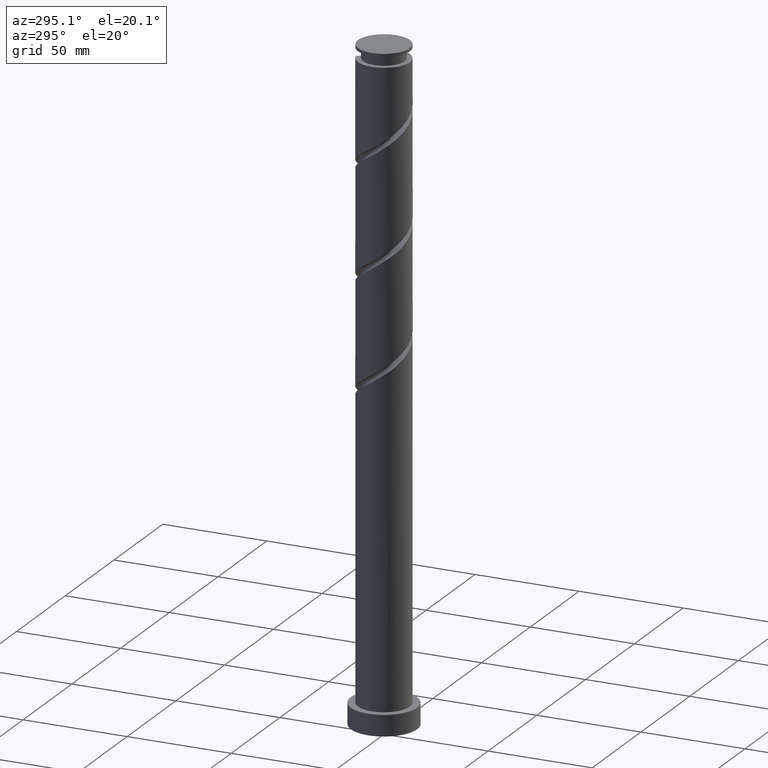
[diagram: clean part render]
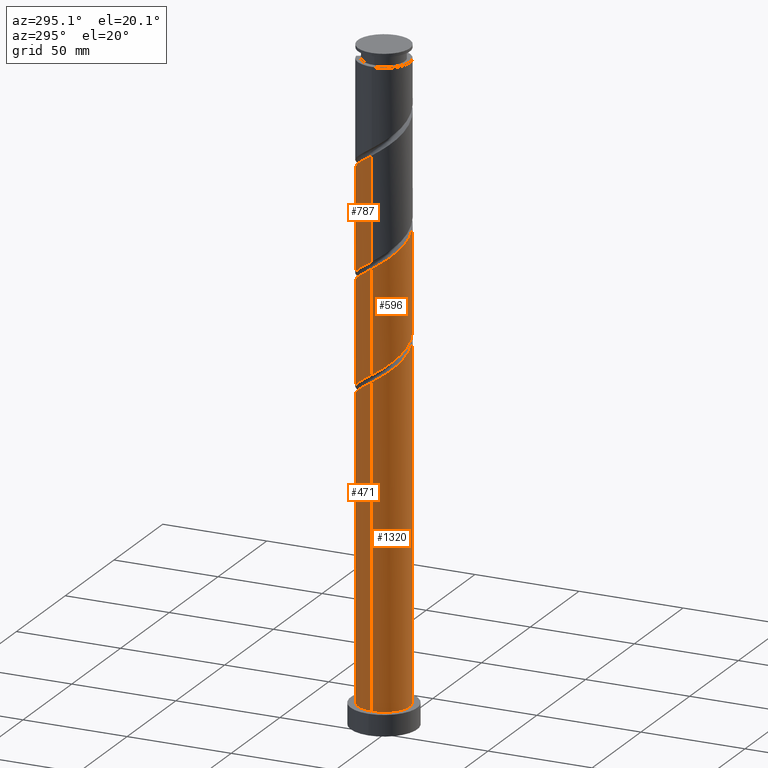
[diagram: same view with one multi-face feature highlighted, each face labeled with its STEP entity id]
A machine part, auxiliary view. The highlighted faces form ONE feature: a constant-radius fillet chain: 4 tangent blend faces with common blend radius 12.5 mm. The faces share edges in the B-rep.
Their STEP definitions:
[1] entity #471 (Cylinder):
#3 = AXIS2_PLACEMENT_3D ( 'NONE', #437, #1153, #4 ) ;
#4 = DIRECTION ( 'NONE',  ( -1.000000000000000000, 0.000000000000000000, 0.000000000000000000 ) ) ;
#12 = CARTESIAN_POINT ( 'NONE',  ( -6.434255898914307714, 10.80897657881207152, 153.8468294155478588 ) ) ;
#29 = CARTESIAN_POINT ( 'NONE',  ( -12.50000000000001776, -5.074762997318953565E-16, 162.4848123376418130 ) ) ;
#106 = DIRECTION ( 'NONE',  ( -0.000000000000000000, -0.000000000000000000, -1.000000000000000000 ) ) ;
#115 = CARTESIAN_POINT ( 'NONE',  ( 10.80897657881207152, 6.434255898914305938, 193.2218294155478304 ) ) ;
#123 = CARTESIAN_POINT ( 'NONE',  ( -3.867712106542918526, 11.96972960074382009, 204.4718294155478304 ) ) ;
#124 = AXIS2_PLACEMENT_3D ( 'NONE', #1365, #1650, #347 ) ;
#135 = FACE_OUTER_BOUND ( 'NONE', #1719, .T. ) ;
#162 = CARTESIAN_POINT ( 'NONE',  ( 12.50000000000000000, 1.530808498934191521E-15, 315.0000000000000000 ) ) ;
#172 = CARTESIAN_POINT ( 'NONE',  ( -3.867712106542918526, 11.96972960074382009, 151.9718294155477736 ) ) ;
#179 = CARTESIAN_POINT ( 'NONE',  ( -5.692968815294146445, 11.12834696026720849, 156.6593294155478304 ) ) ;
#190 = CARTESIAN_POINT ( 'NONE',  ( -9.582531330244838941, 8.026524360199537966, 156.6593294155478020 ) ) ;
#211 = CARTESIAN_POINT ( 'NONE',  ( 0.000000000000000000, 0.000000000000000000, 10.00000000000000000 ) ) ;
#213 = VERTEX_POINT ( 'NONE', #1684 ) ;
#243 = CARTESIAN_POINT ( 'NONE',  ( 12.50000000000001776, -1.149284561157527928E-15, 188.7348123376417846 ) ) ;
#254 = LINE ( 'NONE', #1004, #880 ) ;
#281 = CARTESIAN_POINT ( 'NONE',  ( -9.582531330244838941, 8.026524360199537966, 209.1593294155478873 ) ) ;
#297 = CARTESIAN_POINT ( 'NONE',  ( -10.48690342708837697, 6.946832383535930688, 210.0968294155477736 ) ) ;
#299 = CARTESIAN_POINT ( 'NONE',  ( -11.96972960074379877, 3.867712106542914530, 163.2218294155478020 ) ) ;
#309 = CARTESIAN_POINT ( 'NONE',  ( -8.678159233401299133, 9.106216336863141692, 155.7218294155478020 ) ) ;
#347 = DIRECTION ( 'NONE',  ( -1.000000000000000000, 0.000000000000000000, 0.000000000000000000 ) ) ;
#348 = CARTESIAN_POINT ( 'NONE',  ( -12.50000000000002132, 0.1504112145798772171, 162.3844496494166947 ) ) ;
#357 = CARTESIAN_POINT ( 'NONE',  ( -12.50000000000001776, -5.074762997318953565E-16, 214.9848123376417846 ) ) ;
#398 = CIRCLE ( 'NONE', #965, 12.50000000000000000 ) ;
#404 = CARTESIAN_POINT ( 'NONE',  ( -11.12834696026722803, 5.692968815294158880, 211.0343294155478588 ) ) ;
#423 = CARTESIAN_POINT ( 'NONE',  ( 12.25000000000001954, 2.487468592766555187, 190.4093294155478873 ) ) ;
#434 = CARTESIAN_POINT ( 'NONE',  ( -8.678159233401299133, 9.106216336863141692, 208.2218294155478020 ) ) ;
#437 = CARTESIAN_POINT ( 'NONE',  ( 0.000000000000000000, 0.000000000000000000, 315.0000000000000000 ) ) ;
#444 = CARTESIAN_POINT ( 'NONE',  ( 9.957596457837611936, 7.556207566157802979, 194.1593294155478588 ) ) ;
#471 = ADVANCED_FACE ( 'NONE', ( #135 ), #1022, .T. ) ;
#479 = ORIENTED_EDGE ( 'NONE', *, *, #1712, .F. ) ;
#495 = CARTESIAN_POINT ( 'NONE',  ( -6.946832383535917366, 10.48690342708835921, 157.5968294155478304 ) ) ;
#523 = DIRECTION ( 'NONE',  ( 0.000000000000000000, 0.000000000000000000, 1.000000000000000000 ) ) ;
#559 = CARTESIAN_POINT ( 'NONE',  ( 6.946832383535931577, 10.48690342708837697, 196.9718294155478304 ) ) ;
#568 = CARTESIAN_POINT ( 'NONE',  ( 1.708782837392392784, 12.46249111809732035, 200.7218294155477736 ) ) ;
#570 = EDGE_CURVE ( 'NONE', #213, #1221, #1654, .T. ) ;
#589 = CARTESIAN_POINT ( 'NONE',  ( -12.49999999999999822, 3.761294927424663318E-15, 165.8338464934538479 ) ) ;
#598 = CARTESIAN_POINT ( 'NONE',  ( 11.96972960074382009, 3.867712106542916306, 191.3468294155478588 ) ) ;
#635 = CARTESIAN_POINT ( 'NONE',  ( -2.487468592766553410, 12.25000000000001776, 151.0343294155478020 ) ) ;
#645 = CARTESIAN_POINT ( 'NONE',  ( -4.439105247052374636, 11.76979049344605066, 155.7218294155478020 ) ) ;
#713 = CARTESIAN_POINT ( 'NONE',  ( -12.50000000000000000, 0.000000000000000000, 315.0000000000000000 ) ) ;
#716 = VECTOR ( 'NONE', #1357, 1000.000000000000000 ) ;
#733 = CARTESIAN_POINT ( 'NONE',  ( -12.11614080577169617, 3.073944042222387374, 212.9093294155478873 ) ) ;
#755 = CARTESIAN_POINT ( 'NONE',  ( 8.026524360199539743, 9.582531330244838941, 196.0343294155478588 ) ) ;
#762 = VERTEX_POINT ( 'NONE', #1641 ) ;
#775 = CARTESIAN_POINT ( 'NONE',  ( -3.073944042222380268, 12.11614080577167663, 154.7843294155478304 ) ) ;
#777 = EDGE_CURVE ( 'NONE', #968, #1359, #1854, .T. ) ;
#795 = CARTESIAN_POINT ( 'NONE',  ( -12.46249111809732035, 1.708782837392390563, 161.3468294155478020 ) ) ;
#813 = CARTESIAN_POINT ( 'NONE',  ( -2.487468592766553410, 12.25000000000001776, 151.0343294155478020 ) ) ;
#825 = EDGE_CURVE ( 'NONE', #1489, #762, #912, .T. ) ;
#829 = ORIENTED_EDGE ( 'NONE', *, *, #1892, .T. ) ;
#846 = ORIENTED_EDGE ( 'NONE', *, *, #570, .F. ) ;
#863 = CARTESIAN_POINT ( 'NONE',  ( -7.556207566157804756, 9.957596457837610160, 207.2843294155478873 ) ) ;
#864 = CARTESIAN_POINT ( 'NONE',  ( -10.80897657881205198, 6.434255898914301497, 161.3468294155478020 ) ) ;
#874 = CARTESIAN_POINT ( 'NONE',  ( -9.106216336863127481, 8.678159233401288475, 159.4718294155478304 ) ) ;
#880 = VECTOR ( 'NONE', #106, 1000.000000000000000 ) ;
#887 = EDGE_CURVE ( 'NONE', #762, #990, #398, .T. ) ;
#903 = CARTESIAN_POINT ( 'NONE',  ( -11.38935308977792360, 5.150984002728607791, 162.2843294155478873 ) ) ;
#912 = LINE ( 'NONE', #162, #716 ) ;
#914 = ORIENTED_EDGE ( 'NONE', *, *, #1685, .F. ) ;
#922 = VERTEX_POINT ( 'NONE', #357 ) ;
#929 = CARTESIAN_POINT ( 'NONE',  ( -1.708782837392384790, 12.46249111809730081, 153.8468294155478304 ) ) ;
#937 = CARTESIAN_POINT ( 'NONE',  ( -8.026524360199523755, 9.582531330244824730, 158.5343294155478304 ) ) ;
#948 = CARTESIAN_POINT ( 'NONE',  ( -12.50000000000001776, -5.074762997318952579E-16, 162.4848123376418130 ) ) ;
#965 = AXIS2_PLACEMENT_3D ( 'NONE', #211, #523, #1575 ) ;
#968 = VERTEX_POINT ( 'NONE', #813 ) ;
#969 = CIRCLE ( 'NONE', #124, 12.50000000000000000 ) ;
#990 = VERTEX_POINT ( 'NONE', #1131 ) ;
#1004 = CARTESIAN_POINT ( 'NONE',  ( -12.50000000000000000, 0.000000000000000000, 315.0000000000000000 ) ) ;
#1005 = CARTESIAN_POINT ( 'NONE',  ( -12.49638075867677145, 0.3007788792010986367, 214.7843294155478304 ) ) ;
#1012 = CARTESIAN_POINT ( 'NONE',  ( 12.50000000000001776, -1.149284561157527928E-15, 188.7348123376418130 ) ) ;
#1021 = CARTESIAN_POINT ( 'NONE',  ( 9.106216336863141692, 8.678159233401297357, 195.0968294155478304 ) ) ;
#1022 = CYLINDRICAL_SURFACE ( 'NONE', #3, 12.50000000000000000 ) ;
#1026 = ORIENTED_EDGE ( 'NONE', *, *, #825, .T. ) ;
#1033 = CARTESIAN_POINT ( 'NONE',  ( -12.46249111809732035, 1.708782837392390563, 213.8468294155478020 ) ) ;
#1040 = CARTESIAN_POINT ( 'NONE',  ( 3.073944042222391371, 12.11614080577169617, 199.7843294155478588 ) ) ;
#1131 = CARTESIAN_POINT ( 'NONE',  ( -12.50000000000000000, 0.000000000000000000, 10.00000000000000000 ) ) ;
#1143 = EDGE_CURVE ( 'NONE', #922, #213, #254, .T. ) ;
#1147 = ORIENTED_EDGE ( 'NONE', *, *, #1143, .F. ) ;
#1152 = CARTESIAN_POINT ( 'NONE',  ( -2.487468592766554298, 12.25000000000001954, 203.5343294155478020 ) ) ;
#1153 = DIRECTION ( 'NONE',  ( -0.000000000000000000, -0.000000000000000000, -1.000000000000000000 ) ) ;
#1161 = CARTESIAN_POINT ( 'NONE',  ( -12.50000000000001599, 0.1504112145798805200, 214.8844496494166094 ) ) ;
#1190 = CARTESIAN_POINT ( 'NONE',  ( 4.439105247052387071, 11.76979049344606665, 198.8468294155478588 ) ) ;
#1216 = CARTESIAN_POINT ( 'NONE',  ( -0.3007788792010951950, 12.49638075867675369, 152.9093294155478588 ) ) ;
#1221 = VERTEX_POINT ( 'NONE', #1445 ) ;
#1227 = CARTESIAN_POINT ( 'NONE',  ( -5.150984002728612232, 11.38935308977794492, 152.9093294155478588 ) ) ;
#1236 = CARTESIAN_POINT ( 'NONE',  ( -11.76979049344606665, 4.439105247052384406, 159.4718294155478588 ) ) ;
#1307 = DIRECTION ( 'NONE',  ( -0.000000000000000000, -0.000000000000000000, -1.000000000000000000 ) ) ;
#1327 = CARTESIAN_POINT ( 'NONE',  ( -6.434255898914307714, 10.80897657881207152, 206.3468294155478304 ) ) ;
#1338 = LINE ( 'NONE', #713, #1743 ) ;
#1349 = CARTESIAN_POINT ( 'NONE',  ( 5.692968815294160656, 11.12834696026722625, 197.9093294155478020 ) ) ;
#1357 = DIRECTION ( 'NONE',  ( -0.000000000000000000, -0.000000000000000000, -1.000000000000000000 ) ) ;
#1359 = VERTEX_POINT ( 'NONE', #29 ) ;
#1365 = CARTESIAN_POINT ( 'NONE',  ( 0.000000000000000000, 0.000000000000000000, 151.0343294155478304 ) ) ;
#1366 = CARTESIAN_POINT ( 'NONE',  ( -12.11614080577169617, 3.073944042222387374, 160.4093294155478304 ) ) ;
#1384 = CARTESIAN_POINT ( 'NONE',  ( -12.49638075867677145, 0.3007788792010986367, 162.2843294155478588 ) ) ;
#1445 = CARTESIAN_POINT ( 'NONE',  ( 2.487468592766557851, 12.25000000000000000, 151.0343294155478020 ) ) ;
#1463 = CARTESIAN_POINT ( 'NONE',  ( -11.76979049344606665, 4.439105247052384406, 211.9718294155478020 ) ) ;
#1489 = VERTEX_POINT ( 'NONE', #243 ) ;
#1510 = CARTESIAN_POINT ( 'NONE',  ( -7.556207566157804756, 9.957596457837610160, 154.7843294155478304 ) ) ;
#1575 = DIRECTION ( 'NONE',  ( 1.000000000000000000, 0.000000000000000000, 0.000000000000000000 ) ) ;
#1594 = CARTESIAN_POINT ( 'NONE',  ( -12.50000000000001776, -5.074762997318953565E-16, 214.9848123376417846 ) ) ;
#1612 = CARTESIAN_POINT ( 'NONE',  ( -1.107225078990190958, 12.53027039925621544, 202.5968294155478588 ) ) ;
#1632 = CARTESIAN_POINT ( 'NONE',  ( 0.3007788792011008017, 12.49638075867676967, 201.6593294155478588 ) ) ;
#1633 = ORIENTED_EDGE ( 'NONE', *, *, #777, .F. ) ;
#1634 = CARTESIAN_POINT ( 'NONE',  ( -12.25000000000000000, 2.487468592766555631, 164.1593294155478304 ) ) ;
#1641 = CARTESIAN_POINT ( 'NONE',  ( 12.50000000000000000, 1.530808498934191521E-15, 10.00000000000000000 ) ) ;
#1650 = DIRECTION ( 'NONE',  ( 0.000000000000000000, -0.000000000000000000, -1.000000000000000000 ) ) ;
#1654 =( BOUNDED_CURVE ( )  B_SPLINE_CURVE ( 2, ( #589, #1781, #1634, #299, #903, #864, #1904, #874, #937, #495, #179, #645, #775, #929, #1216, #1829, #1809 ),
 .UNSPECIFIED., .F., .T. ) 
 B_SPLINE_CURVE_WITH_KNOTS ( ( 3, 2, 2, 2, 2, 2, 2, 2, 3 ),
 ( 0.9295303401299220836, 0.9375000000000000000, 0.9464285714285713969, 0.9553571428571429047, 0.9642857142857143016, 0.9732142857142856984, 0.9821428571428570953, 0.9910714285714286031, 1.000000000000000000 ),
 .UNSPECIFIED. ) 
 CURVE ( )  GEOMETRIC_REPRESENTATION_ITEM ( )  RATIONAL_B_SPLINE_CURVE ( ( 0.9079949616361863152, 0.9039886423360496970, 0.9090909090909161661, 0.9033747362665913716, 0.9090909090909161661, 0.9033747362665913716, 0.9090909090909161661, 0.9033747362665913716, 0.9090909090909161661, 0.9033747362665913716, 0.9090909090909161661, 0.9033747362665913716, 0.9090909090909161661, 0.9033747362665913716, 0.9090909090909161661, 0.9033747362665913716, 0.9090909090909161661 ) ) 
 REPRESENTATION_ITEM ( '' )  );
#1682 = CARTESIAN_POINT ( 'NONE',  ( -10.48690342708837697, 6.946832383535930688, 157.5968294155477736 ) ) ;
#1684 = CARTESIAN_POINT ( 'NONE',  ( -12.49999999999999822, 3.761294927424663318E-15, 165.8338464934538763 ) ) ;
#1685 = EDGE_CURVE ( 'NONE', #1359, #990, #1338, .T. ) ;
#1712 = EDGE_CURVE ( 'NONE', #1489, #922, #1800, .T. ) ;
#1719 = EDGE_LOOP ( 'NONE', ( #479, #1026, #1774, #914, #1633, #829, #846, #1147 ) ) ;
#1742 = CARTESIAN_POINT ( 'NONE',  ( -5.150984002728612232, 11.38935308977794492, 205.4093294155478873 ) ) ;
#1743 = VECTOR ( 'NONE', #1307, 1000.000000000000000 ) ;
#1771 = CARTESIAN_POINT ( 'NONE',  ( 12.50000000000001421, 1.256297269074021283, 189.5730834166053285 ) ) ;
#1774 = ORIENTED_EDGE ( 'NONE', *, *, #887, .T. ) ;
#1781 = CARTESIAN_POINT ( 'NONE',  ( -12.49999999999999467, 1.256297269074019729, 164.9955754144902471 ) ) ;
#1800 =( BOUNDED_CURVE ( )  B_SPLINE_CURVE ( 2, ( #1012, #1771, #423, #598, #1902, #115, #444, #1021, #755, #559, #1349, #1190, #1040, #568, #1632, #1612, #1152, #123, #1742, #1327, #863, #434, #281, #297, #404, #1463, #733, #1033, #1005, #1161, #1594 ),
 .UNSPECIFIED., .F., .T. ) 
 B_SPLINE_CURVE_WITH_KNOTS ( ( 3, 2, 2, 2, 2, 2, 2, 2, 2, 2, 2, 2, 2, 2, 2, 3 ),
 ( 0.1795303401299221113, 0.1875000000000000000, 0.1964285714285713969, 0.2053571428571429047, 0.2142857142857143016, 0.2232142857142856984, 0.2321428571428570953, 0.2410714285714286031, 0.2500000000000000000, 0.2589285714285713969, 0.2678571428571429047, 0.2767857142857143016, 0.2857142857142856984, 0.2946428571428570953, 0.3035714285714286031, 0.3045303401299220836 ),
 .UNSPECIFIED. ) 
 CURVE ( )  GEOMETRIC_REPRESENTATION_ITEM ( )  RATIONAL_B_SPLINE_CURVE ( ( 0.9079949616361926434, 0.9039886423360559142, 0.9090909090909224943, 0.9033747362665975889, 0.9090909090909224943, 0.9033747362665975889, 0.9090909090909224943, 0.9033747362665975889, 0.9090909090909224943, 0.9033747362665975889, 0.9090909090909224943, 0.9033747362665975889, 0.9090909090909224943, 0.9033747362665975889, 0.9090909090909224943, 0.9033747362665975889, 0.9090909090909224943, 0.9033747362665975889, 0.9090909090909224943, 0.9033747362665975889, 0.9090909090909224943, 0.9033747362665975889, 0.9090909090909224943, 0.9033747362665975889, 0.9090909090909224943, 0.9033747362665975889, 0.9090909090909224943, 0.9033747362665975889, 0.9090909090909224943, 0.9084770030214643910, 0.9079949616361926434 ) ) 
 REPRESENTATION_ITEM ( '' )  );
#1809 = CARTESIAN_POINT ( 'NONE',  ( 2.487468592766557851, 12.25000000000000000, 151.0343294155478020 ) ) ;
#1819 = CARTESIAN_POINT ( 'NONE',  ( -11.12834696026722803, 5.692968815294158880, 158.5343294155479157 ) ) ;
#1829 = CARTESIAN_POINT ( 'NONE',  ( 1.107225078990194511, 12.53027039925619590, 151.9718294155477736 ) ) ;
#1854 =( BOUNDED_CURVE ( )  B_SPLINE_CURVE ( 2, ( #635, #172, #1227, #12, #1510, #309, #190, #1682, #1819, #1236, #1366, #795, #1384, #348, #948 ),
 .UNSPECIFIED., .F., .T. ) 
 B_SPLINE_CURVE_WITH_KNOTS ( ( 3, 2, 2, 2, 2, 2, 2, 3 ),
 ( 0.000000000000000000, 0.008928571428571396851, 0.01785714285714290472, 0.02678571428571430157, 0.03571428571428569843, 0.04464285714285709528, 0.05357142857142860315, 0.05453034012992210439 ),
 .UNSPECIFIED. ) 
 CURVE ( )  GEOMETRIC_REPRESENTATION_ITEM ( )  RATIONAL_B_SPLINE_CURVE ( ( 0.9090909090909224943, 0.9033747362665975889, 0.9090909090909224943, 0.9033747362665975889, 0.9090909090909224943, 0.9033747362665975889, 0.9090909090909224943, 0.9033747362665975889, 0.9090909090909224943, 0.9033747362665975889, 0.9090909090909224943, 0.9033747362665975889, 0.9090909090909224943, 0.9084770030214641690, 0.9079949616361924214 ) ) 
 REPRESENTATION_ITEM ( '' )  );
#1892 = EDGE_CURVE ( 'NONE', #968, #1221, #969, .T. ) ;
#1902 = CARTESIAN_POINT ( 'NONE',  ( 11.38935308977794492, 5.150984002728610456, 192.2843294155478873 ) ) ;
#1904 = CARTESIAN_POINT ( 'NONE',  ( -9.957596457837594173, 7.556207566157791433, 160.4093294155478020 ) ) ;
[2] entity #1320 (Cylinder):
#29 = CARTESIAN_POINT ( 'NONE',  ( -12.50000000000001776, -5.074762997318953565E-16, 162.4848123376418130 ) ) ;
#34 = AXIS2_PLACEMENT_3D ( 'NONE', #782, #1214, #1788 ) ;
#71 = CARTESIAN_POINT ( 'NONE',  ( -12.50000000000001776, -5.074762997318952579E-16, 162.4848123376418130 ) ) ;
#88 = CARTESIAN_POINT ( 'NONE',  ( -9.957596457837610160, -7.556207566157804756, 167.9093294155478020 ) ) ;
#108 = CARTESIAN_POINT ( 'NONE',  ( -3.073944042222388706, -12.11614080577169439, 173.5343294155478588 ) ) ;
#162 = CARTESIAN_POINT ( 'NONE',  ( 12.50000000000000000, 1.530808498934191521E-15, 315.0000000000000000 ) ) ;
#243 = CARTESIAN_POINT ( 'NONE',  ( 12.50000000000001776, -1.149284561157527928E-15, 188.7348123376417846 ) ) ;
#298 = ORIENTED_EDGE ( 'NONE', *, *, #302, .T. ) ;
#302 = EDGE_CURVE ( 'NONE', #990, #762, #340, .T. ) ;
#340 = CIRCLE ( 'NONE', #1024, 12.50000000000000000 ) ;
#350 = DIRECTION ( 'NONE',  ( 1.000000000000000000, 0.000000000000000000, 0.000000000000000000 ) ) ;
#359 = CARTESIAN_POINT ( 'NONE',  ( 3.867712106542917194, -11.96972960074382009, 178.2218294155478020 ) ) ;
#368 = CARTESIAN_POINT ( 'NONE',  ( 8.678159233401297357, -9.106216336863141692, 181.9718294155478588 ) ) ;
#378 = CARTESIAN_POINT ( 'NONE',  ( -9.106216336863141692, -8.678159233401297357, 168.8468294155478588 ) ) ;
#387 = CARTESIAN_POINT ( 'NONE',  ( -0.3007788792010990253, -12.49638075867677145, 175.4093294155479157 ) ) ;
#390 = ORIENTED_EDGE ( 'NONE', *, *, #825, .F. ) ;
#395 = CARTESIAN_POINT ( 'NONE',  ( -11.38935308977794492, -5.150984002728612232, 166.0343294155478873 ) ) ;
#396 = EDGE_CURVE ( 'NONE', #1359, #1489, #997, .T. ) ;
#466 = DIRECTION ( 'NONE',  ( 0.000000000000000000, 0.000000000000000000, 1.000000000000000000 ) ) ;
#507 = CARTESIAN_POINT ( 'NONE',  ( 10.48690342708837697, -6.946832383535931577, 183.8468294155477736 ) ) ;
#516 = CARTESIAN_POINT ( 'NONE',  ( 12.50000000000002132, -0.1504112145798778555, 188.6344496494166663 ) ) ;
#668 = CARTESIAN_POINT ( 'NONE',  ( -5.692968815294158880, -11.12834696026722625, 171.6593294155478304 ) ) ;
#687 = CARTESIAN_POINT ( 'NONE',  ( 12.11614080577169439, -3.073944042222390038, 186.6593294155478304 ) ) ;
#706 = CARTESIAN_POINT ( 'NONE',  ( 7.556207566157803868, -9.957596457837610160, 181.0343294155478873 ) ) ;
#713 = CARTESIAN_POINT ( 'NONE',  ( -12.50000000000000000, 0.000000000000000000, 315.0000000000000000 ) ) ;
#716 = VECTOR ( 'NONE', #1357, 1000.000000000000000 ) ;
#762 = VERTEX_POINT ( 'NONE', #1641 ) ;
#782 = CARTESIAN_POINT ( 'NONE',  ( 0.000000000000000000, 0.000000000000000000, 315.0000000000000000 ) ) ;
#825 = EDGE_CURVE ( 'NONE', #1489, #762, #912, .T. ) ;
#826 = CARTESIAN_POINT ( 'NONE',  ( 5.150984002728612232, -11.38935308977794492, 179.1593294155478588 ) ) ;
#836 = CARTESIAN_POINT ( 'NONE',  ( 6.434255898914305938, -10.80897657881207152, 180.0968294155478304 ) ) ;
#912 = LINE ( 'NONE', #162, #716 ) ;
#935 = CYLINDRICAL_SURFACE ( 'NONE', #34, 12.50000000000000000 ) ;
#959 = CARTESIAN_POINT ( 'NONE',  ( 12.46249111809732035, -1.708782837392392340, 187.5968294155478588 ) ) ;
#970 = CARTESIAN_POINT ( 'NONE',  ( 11.12834696026722625, -5.692968815294160656, 184.7843294155478304 ) ) ;
#987 = CARTESIAN_POINT ( 'NONE',  ( 2.487468592766555631, -12.25000000000001954, 177.2843294155478873 ) ) ;
#990 = VERTEX_POINT ( 'NONE', #1131 ) ;
#996 = CARTESIAN_POINT ( 'NONE',  ( -8.026524360199537966, -9.582531330244838941, 169.7843294155479157 ) ) ;
#997 =( BOUNDED_CURVE ( )  B_SPLINE_CURVE ( 2, ( #71, #1292, #1447, #1725, #395, #1716, #88, #378, #996, #1569, #668, #1262, #108, #1144, #387, #1694, #987, #359, #826, #836, #706, #368, #1426, #507, #970, #1103, #687, #959, #1558, #516, #1112 ),
 .UNSPECIFIED., .F., .T. ) 
 B_SPLINE_CURVE_WITH_KNOTS ( ( 3, 2, 2, 2, 2, 2, 2, 2, 2, 2, 2, 2, 2, 2, 2, 3 ),
 ( 0.05453034012992210439, 0.06250000000000000000, 0.07142857142857139685, 0.08035714285714290472, 0.08928571428571430157, 0.09821428571428569843, 0.1071428571428570953, 0.1160714285714286031, 0.1250000000000000000, 0.1339285714285713969, 0.1428571428571429047, 0.1517857142857143016, 0.1607142857142856984, 0.1696428571428570953, 0.1785714285714286031, 0.1795303401299221113 ),
 .UNSPECIFIED. ) 
 CURVE ( )  GEOMETRIC_REPRESENTATION_ITEM ( )  RATIONAL_B_SPLINE_CURVE ( ( 0.9079949616361924214, 0.9039886423360559142, 0.9090909090909224943, 0.9033747362665975889, 0.9090909090909224943, 0.9033747362665975889, 0.9090909090909224943, 0.9033747362665975889, 0.9090909090909224943, 0.9033747362665975889, 0.9090909090909224943, 0.9033747362665975889, 0.9090909090909224943, 0.9033747362665975889, 0.9090909090909224943, 0.9033747362665975889, 0.9090909090909224943, 0.9033747362665975889, 0.9090909090909224943, 0.9033747362665975889, 0.9090909090909224943, 0.9033747362665975889, 0.9090909090909224943, 0.9033747362665975889, 0.9090909090909224943, 0.9033747362665975889, 0.9090909090909224943, 0.9033747362665975889, 0.9090909090909224943, 0.9084770030214642800, 0.9079949616361926434 ) ) 
 REPRESENTATION_ITEM ( '' )  );
#1024 = AXIS2_PLACEMENT_3D ( 'NONE', #1801, #466, #350 ) ;
#1054 = EDGE_LOOP ( 'NONE', ( #390, #1736, #1101, #298 ) ) ;
#1101 = ORIENTED_EDGE ( 'NONE', *, *, #1685, .T. ) ;
#1103 = CARTESIAN_POINT ( 'NONE',  ( 11.76979049344606665, -4.439105247052385295, 185.7218294155478588 ) ) ;
#1112 = CARTESIAN_POINT ( 'NONE',  ( 12.50000000000001776, -1.149284561157527928E-15, 188.7348123376418130 ) ) ;
#1131 = CARTESIAN_POINT ( 'NONE',  ( -12.50000000000000000, 0.000000000000000000, 10.00000000000000000 ) ) ;
#1144 = CARTESIAN_POINT ( 'NONE',  ( -1.708782837392391452, -12.46249111809732213, 174.4718294155477736 ) ) ;
#1214 = DIRECTION ( 'NONE',  ( -0.000000000000000000, -0.000000000000000000, -1.000000000000000000 ) ) ;
#1262 = CARTESIAN_POINT ( 'NONE',  ( -4.439105247052385295, -11.76979049344606665, 172.5968294155478020 ) ) ;
#1292 = CARTESIAN_POINT ( 'NONE',  ( -12.50000000000001421, -1.256297269074021727, 163.3230834166053853 ) ) ;
#1307 = DIRECTION ( 'NONE',  ( -0.000000000000000000, -0.000000000000000000, -1.000000000000000000 ) ) ;
#1320 = ADVANCED_FACE ( 'NONE', ( #1499 ), #935, .T. ) ;
#1338 = LINE ( 'NONE', #713, #1743 ) ;
#1357 = DIRECTION ( 'NONE',  ( -0.000000000000000000, -0.000000000000000000, -1.000000000000000000 ) ) ;
#1359 = VERTEX_POINT ( 'NONE', #29 ) ;
#1426 = CARTESIAN_POINT ( 'NONE',  ( 9.582531330244838941, -8.026524360199539743, 182.9093294155478588 ) ) ;
#1447 = CARTESIAN_POINT ( 'NONE',  ( -12.25000000000001954, -2.487468592766556519, 164.1593294155478873 ) ) ;
#1489 = VERTEX_POINT ( 'NONE', #243 ) ;
#1499 = FACE_OUTER_BOUND ( 'NONE', #1054, .T. ) ;
#1558 = CARTESIAN_POINT ( 'NONE',  ( 12.49638075867677145, -0.3007788792011003021, 188.5343294155478588 ) ) ;
#1569 = CARTESIAN_POINT ( 'NONE',  ( -6.946832383535930688, -10.48690342708837697, 170.7218294155478304 ) ) ;
#1641 = CARTESIAN_POINT ( 'NONE',  ( 12.50000000000000000, 1.530808498934191521E-15, 10.00000000000000000 ) ) ;
#1685 = EDGE_CURVE ( 'NONE', #1359, #990, #1338, .T. ) ;
#1694 = CARTESIAN_POINT ( 'NONE',  ( 1.107225078990192291, -12.53027039925621366, 176.3468294155478588 ) ) ;
#1716 = CARTESIAN_POINT ( 'NONE',  ( -10.80897657881207152, -6.434255898914305938, 166.9718294155477736 ) ) ;
#1725 = CARTESIAN_POINT ( 'NONE',  ( -11.96972960074382009, -3.867712106542918082, 165.0968294155478588 ) ) ;
#1736 = ORIENTED_EDGE ( 'NONE', *, *, #396, .F. ) ;
#1743 = VECTOR ( 'NONE', #1307, 1000.000000000000000 ) ;
#1788 = DIRECTION ( 'NONE',  ( -1.000000000000000000, 0.000000000000000000, 0.000000000000000000 ) ) ;
#1801 = CARTESIAN_POINT ( 'NONE',  ( 0.000000000000000000, 0.000000000000000000, 10.00000000000000000 ) ) ;
[3] entity #596 (Cylinder):
#1 = CARTESIAN_POINT ( 'NONE',  ( 12.49638075867677145, -0.3007788792011003021, 241.0343294155478588 ) ) ;
#2 = CARTESIAN_POINT ( 'NONE',  ( -9.582531330244821177, -8.026524360199521979, 171.6593294155478588 ) ) ;
#14 = ORIENTED_EDGE ( 'NONE', *, *, #1568, .F. ) ;
#21 = CARTESIAN_POINT ( 'NONE',  ( 0.000000000000000000, 0.000000000000000000, 315.0000000000000000 ) ) ;
#59 = CARTESIAN_POINT ( 'NONE',  ( -4.439105247052385295, -11.76979049344606665, 225.0968294155478304 ) ) ;
#77 = CARTESIAN_POINT ( 'NONE',  ( 3.867712106542917194, -11.96972960074382009, 230.7218294155477736 ) ) ;
#106 = DIRECTION ( 'NONE',  ( -0.000000000000000000, -0.000000000000000000, -1.000000000000000000 ) ) ;
#122 = CARTESIAN_POINT ( 'NONE',  ( 7.556207566157803868, -9.957596457837610160, 233.5343294155478873 ) ) ;
#133 = CARTESIAN_POINT ( 'NONE',  ( 12.11614080577169439, -3.073944042222390038, 239.1593294155479441 ) ) ;
#142 = CARTESIAN_POINT ( 'NONE',  ( -6.434255898914301497, -10.80897657881204843, 174.4718294155478020 ) ) ;
#181 = AXIS2_PLACEMENT_3D ( 'NONE', #21, #1088, #1198 ) ;
#189 = DIRECTION ( 'NONE',  ( -0.000000000000000000, -0.000000000000000000, -1.000000000000000000 ) ) ;
#200 = LINE ( 'NONE', #318, #591 ) ;
#213 = VERTEX_POINT ( 'NONE', #1684 ) ;
#233 = CARTESIAN_POINT ( 'NONE',  ( 9.106216336863127481, -8.678159233401288475, 185.7218294155478304 ) ) ;
#250 = ORIENTED_EDGE ( 'NONE', *, *, #1143, .T. ) ;
#254 = LINE ( 'NONE', #1004, #880 ) ;
#263 = CARTESIAN_POINT ( 'NONE',  ( -8.678159233401288475, -9.106216336863127481, 172.5968294155478588 ) ) ;
#271 = CARTESIAN_POINT ( 'NONE',  ( -12.11614080577167663, -3.073944042222380268, 167.9093294155478020 ) ) ;
#318 = CARTESIAN_POINT ( 'NONE',  ( 12.50000000000000000, 1.530808498934191521E-15, 315.0000000000000000 ) ) ;
#357 = CARTESIAN_POINT ( 'NONE',  ( -12.50000000000001776, -5.074762997318953565E-16, 214.9848123376417846 ) ) ;
#367 = CARTESIAN_POINT ( 'NONE',  ( 8.026524360199521979, -9.582531330244826506, 184.7843294155478020 ) ) ;
#394 = CARTESIAN_POINT ( 'NONE',  ( 9.957596457837590620, -7.556207566157794098, 186.6593294155478020 ) ) ;
#515 = CARTESIAN_POINT ( 'NONE',  ( 12.25000000000000000, -2.487468592766556963, 190.4093294155478588 ) ) ;
#549 = CARTESIAN_POINT ( 'NONE',  ( -5.692968815294158880, -11.12834696026722625, 224.1593294155479157 ) ) ;
#591 = VECTOR ( 'NONE', #189, 1000.000000000000000 ) ;
#596 = ADVANCED_FACE ( 'NONE', ( #614 ), #624, .T. ) ;
#597 = CARTESIAN_POINT ( 'NONE',  ( 12.50000000000001776, -1.149284561157527928E-15, 241.2348123376417561 ) ) ;
#614 = FACE_OUTER_BOUND ( 'NONE', #993, .T. ) ;
#624 = CYLINDRICAL_SURFACE ( 'NONE', #181, 12.50000000000000000 ) ;
#655 = CARTESIAN_POINT ( 'NONE',  ( -1.708782837392391452, -12.46249111809732213, 226.9718294155478304 ) ) ;
#665 = CARTESIAN_POINT ( 'NONE',  ( -10.80897657881207152, -6.434255898914305938, 219.4718294155478304 ) ) ;
#674 = CARTESIAN_POINT ( 'NONE',  ( 5.150984002728612232, -11.38935308977794492, 231.6593294155478304 ) ) ;
#685 = CARTESIAN_POINT ( 'NONE',  ( 0.3007788792010940293, -12.49638075867675369, 179.1593294155478588 ) ) ;
#724 = CARTESIAN_POINT ( 'NONE',  ( -12.49999999999999822, 3.761294927424663318E-15, 165.8338464934538479 ) ) ;
#736 = VERTEX_POINT ( 'NONE', #784 ) ;
#784 = CARTESIAN_POINT ( 'NONE',  ( 12.49999999999999822, -5.373278467749518575E-15, 192.0838464934538763 ) ) ;
#786 = ORIENTED_EDGE ( 'NONE', *, *, #1116, .F. ) ;
#823 = CARTESIAN_POINT ( 'NONE',  ( 1.107225078990192291, -12.53027039925621366, 228.8468294155478873 ) ) ;
#835 = CARTESIAN_POINT ( 'NONE',  ( 3.073944042222379380, -12.11614080577167663, 181.0343294155478588 ) ) ;
#875 = ORIENTED_EDGE ( 'NONE', *, *, #1915, .F. ) ;
#880 = VECTOR ( 'NONE', #106, 1000.000000000000000 ) ;
#884 = CARTESIAN_POINT ( 'NONE',  ( -5.150984002728608679, -11.38935308977792360, 175.4093294155478304 ) ) ;
#895 = CARTESIAN_POINT ( 'NONE',  ( -11.12834696026720849, -5.692968815294145557, 169.7843294155478588 ) ) ;
#902 = CARTESIAN_POINT ( 'NONE',  ( -11.76979049344605066, -4.439105247052373748, 168.8468294155478304 ) ) ;
#922 = VERTEX_POINT ( 'NONE', #357 ) ;
#958 = CARTESIAN_POINT ( 'NONE',  ( 12.49999999999999822, -5.373278467749518575E-15, 192.0838464934539047 ) ) ;
#966 = CARTESIAN_POINT ( 'NONE',  ( -11.96972960074382009, -3.867712106542918082, 217.5968294155478304 ) ) ;
#978 = CARTESIAN_POINT ( 'NONE',  ( 12.50000000000001776, -1.149284561157527928E-15, 241.2348123376417561 ) ) ;
#986 = CARTESIAN_POINT ( 'NONE',  ( -6.946832383535930688, -10.48690342708837697, 223.2218294155478304 ) ) ;
#993 = EDGE_LOOP ( 'NONE', ( #875, #786, #250, #14 ) ) ;
#994 = CARTESIAN_POINT ( 'NONE',  ( -12.25000000000001954, -2.487468592766556519, 216.6593294155478873 ) ) ;
#995 = CARTESIAN_POINT ( 'NONE',  ( -1.107225078990195843, -12.53027039925619590, 178.2218294155478020 ) ) ;
#1004 = CARTESIAN_POINT ( 'NONE',  ( -12.50000000000000000, 0.000000000000000000, 315.0000000000000000 ) ) ;
#1039 = CARTESIAN_POINT ( 'NONE',  ( 11.12834696026722625, -5.692968815294160656, 237.2843294155479157 ) ) ;
#1079 =( BOUNDED_CURVE ( )  B_SPLINE_CURVE ( 2, ( #1692, #1870, #994, #966, #1099, #665, #1277, #1702, #1258, #986, #549, #59, #1556, #655, #1847, #823, #1411, #77, #674, #1760, #122, #1326, #1454, #1169, #1039, #1337, #133, #1480, #1, #1770, #597 ),
 .UNSPECIFIED., .F., .T. ) 
 B_SPLINE_CURVE_WITH_KNOTS ( ( 3, 2, 2, 2, 2, 2, 2, 2, 2, 2, 2, 2, 2, 2, 2, 3 ),
 ( 0.3045303401299220836, 0.3125000000000000000, 0.3214285714285713969, 0.3303571428571429047, 0.3392857142857143016, 0.3482142857142856984, 0.3571428571428570953, 0.3660714285714286031, 0.3750000000000000000, 0.3839285714285713969, 0.3928571428571429047, 0.4017857142857143016, 0.4107142857142856984, 0.4196428571428570953, 0.4285714285714286031, 0.4295303401299220836 ),
 .UNSPECIFIED. ) 
 CURVE ( )  GEOMETRIC_REPRESENTATION_ITEM ( )  RATIONAL_B_SPLINE_CURVE ( ( 0.9079949616361926434, 0.9039886423360559142, 0.9090909090909224943, 0.9033747362665975889, 0.9090909090909224943, 0.9033747362665975889, 0.9090909090909224943, 0.9033747362665975889, 0.9090909090909224943, 0.9033747362665975889, 0.9090909090909224943, 0.9033747362665975889, 0.9090909090909224943, 0.9033747362665975889, 0.9090909090909224943, 0.9033747362665975889, 0.9090909090909224943, 0.9033747362665975889, 0.9090909090909224943, 0.9033747362665975889, 0.9090909090909224943, 0.9033747362665975889, 0.9090909090909224943, 0.9033747362665975889, 0.9090909090909224943, 0.9033747362665975889, 0.9090909090909224943, 0.9033747362665975889, 0.9090909090909224943, 0.9084770030214643910, 0.9079949616361926434 ) ) 
 REPRESENTATION_ITEM ( '' )  );
#1088 = DIRECTION ( 'NONE',  ( -0.000000000000000000, -0.000000000000000000, -1.000000000000000000 ) ) ;
#1099 = CARTESIAN_POINT ( 'NONE',  ( -11.38935308977794492, -5.150984002728612232, 218.5343294155478873 ) ) ;
#1110 = CARTESIAN_POINT ( 'NONE',  ( 11.38935308977792360, -5.150984002728609568, 188.5343294155478588 ) ) ;
#1116 = EDGE_CURVE ( 'NONE', #922, #1450, #1079, .T. ) ;
#1132 = CARTESIAN_POINT ( 'NONE',  ( 4.439105247052373748, -11.76979049344605066, 181.9718294155478020 ) ) ;
#1143 = EDGE_CURVE ( 'NONE', #922, #213, #254, .T. ) ;
#1169 = CARTESIAN_POINT ( 'NONE',  ( 10.48690342708837697, -6.946832383535931577, 236.3468294155477736 ) ) ;
#1198 = DIRECTION ( 'NONE',  ( -1.000000000000000000, 0.000000000000000000, 0.000000000000000000 ) ) ;
#1258 = CARTESIAN_POINT ( 'NONE',  ( -8.026524360199537966, -9.582531330244838941, 222.2843294155479157 ) ) ;
#1277 = CARTESIAN_POINT ( 'NONE',  ( -9.957596457837610160, -7.556207566157804756, 220.4093294155478588 ) ) ;
#1278 = CARTESIAN_POINT ( 'NONE',  ( -2.487468592766556519, -12.25000000000000000, 177.2843294155478020 ) ) ;
#1317 = CARTESIAN_POINT ( 'NONE',  ( -7.556207566157791433, -9.957596457837590620, 173.5343294155478020 ) ) ;
#1326 = CARTESIAN_POINT ( 'NONE',  ( 8.678159233401297357, -9.106216336863141692, 234.4718294155478304 ) ) ;
#1337 = CARTESIAN_POINT ( 'NONE',  ( 11.76979049344606665, -4.439105247052385295, 238.2218294155478020 ) ) ;
#1350 =( BOUNDED_CURVE ( )  B_SPLINE_CURVE ( 2, ( #958, #1546, #515, #1733, #1110, #1703, #394, #233, #367, #1715, #1557, #1132, #835, #1724, #685, #995, #1278, #1603, #884, #142, #1317, #263, #2, #1911, #895, #902, #271, #1455, #1622, #1492, #724 ),
 .UNSPECIFIED., .F., .T. ) 
 B_SPLINE_CURVE_WITH_KNOTS ( ( 3, 2, 2, 2, 2, 2, 2, 2, 2, 2, 2, 2, 2, 2, 2, 3 ),
 ( 0.8045303401299219725, 0.8125000000000000000, 0.8214285714285713969, 0.8303571428571429047, 0.8392857142857143016, 0.8482142857142856984, 0.8571428571428570953, 0.8660714285714286031, 0.8750000000000000000, 0.8839285714285713969, 0.8928571428571429047, 0.9017857142857143016, 0.9107142857142856984, 0.9196428571428570953, 0.9285714285714286031, 0.9295303401299220836 ),
 .UNSPECIFIED. ) 
 CURVE ( )  GEOMETRIC_REPRESENTATION_ITEM ( )  RATIONAL_B_SPLINE_CURVE ( ( 0.9079949616361864262, 0.9039886423360495860, 0.9090909090909161661, 0.9033747362665913716, 0.9090909090909161661, 0.9033747362665913716, 0.9090909090909161661, 0.9033747362665913716, 0.9090909090909161661, 0.9033747362665913716, 0.9090909090909161661, 0.9033747362665913716, 0.9090909090909161661, 0.9033747362665913716, 0.9090909090909161661, 0.9033747362665913716, 0.9090909090909161661, 0.9033747362665913716, 0.9090909090909161661, 0.9033747362665913716, 0.9090909090909161661, 0.9033747362665913716, 0.9090909090909161661, 0.9033747362665913716, 0.9090909090909161661, 0.9033747362665913716, 0.9090909090909161661, 0.9033747362665913716, 0.9090909090909161661, 0.9084770030214579517, 0.9079949616361863152 ) ) 
 REPRESENTATION_ITEM ( '' )  );
#1411 = CARTESIAN_POINT ( 'NONE',  ( 2.487468592766555631, -12.25000000000001954, 229.7843294155478588 ) ) ;
#1450 = VERTEX_POINT ( 'NONE', #978 ) ;
#1454 = CARTESIAN_POINT ( 'NONE',  ( 9.582531330244838941, -8.026524360199539743, 235.4093294155478588 ) ) ;
#1455 = CARTESIAN_POINT ( 'NONE',  ( -12.46249111809730081, -1.708782837392383680, 166.9718294155477736 ) ) ;
#1480 = CARTESIAN_POINT ( 'NONE',  ( 12.46249111809732035, -1.708782837392392340, 240.0968294155478873 ) ) ;
#1492 = CARTESIAN_POINT ( 'NONE',  ( -12.49999999999999822, -0.1504112145798770783, 165.9342091816789377 ) ) ;
#1546 = CARTESIAN_POINT ( 'NONE',  ( 12.49999999999999822, -1.256297269074004186, 191.2455754144902471 ) ) ;
#1556 = CARTESIAN_POINT ( 'NONE',  ( -3.073944042222388706, -12.11614080577169439, 226.0343294155478588 ) ) ;
#1557 = CARTESIAN_POINT ( 'NONE',  ( 5.692968815294142892, -11.12834696026720849, 182.9093294155478588 ) ) ;
#1568 = EDGE_CURVE ( 'NONE', #736, #213, #1350, .T. ) ;
#1603 = CARTESIAN_POINT ( 'NONE',  ( -3.867712106542915862, -11.96972960074379877, 176.3468294155477736 ) ) ;
#1622 = CARTESIAN_POINT ( 'NONE',  ( -12.49638075867675369, -0.3007788792010949175, 166.0343294155478304 ) ) ;
#1684 = CARTESIAN_POINT ( 'NONE',  ( -12.49999999999999822, 3.761294927424663318E-15, 165.8338464934538763 ) ) ;
#1692 = CARTESIAN_POINT ( 'NONE',  ( -12.50000000000001776, -5.074762997318953565E-16, 214.9848123376417846 ) ) ;
#1702 = CARTESIAN_POINT ( 'NONE',  ( -9.106216336863141692, -8.678159233401297357, 221.3468294155478020 ) ) ;
#1703 = CARTESIAN_POINT ( 'NONE',  ( 10.80897657881204843, -6.434255898914301497, 187.5968294155478588 ) ) ;
#1715 = CARTESIAN_POINT ( 'NONE',  ( 6.946832383535914701, -10.48690342708836098, 183.8468294155477736 ) ) ;
#1724 = CARTESIAN_POINT ( 'NONE',  ( 1.708782837392383680, -12.46249111809730081, 180.0968294155478588 ) ) ;
#1733 = CARTESIAN_POINT ( 'NONE',  ( 11.96972960074379877, -3.867712106542915862, 189.4718294155477736 ) ) ;
#1760 = CARTESIAN_POINT ( 'NONE',  ( 6.434255898914305938, -10.80897657881207152, 232.5968294155478304 ) ) ;
#1770 = CARTESIAN_POINT ( 'NONE',  ( 12.50000000000001599, -0.1504112145798821576, 241.1344496494166663 ) ) ;
#1847 = CARTESIAN_POINT ( 'NONE',  ( -0.3007788792010990253, -12.49638075867677145, 227.9093294155478873 ) ) ;
#1870 = CARTESIAN_POINT ( 'NONE',  ( -12.50000000000001421, -1.256297269074018175, 215.8230834166053569 ) ) ;
#1911 = CARTESIAN_POINT ( 'NONE',  ( -10.48690342708835921, -6.946832383535914701, 170.7218294155478304 ) ) ;
#1915 = EDGE_CURVE ( 'NONE', #1450, #736, #200, .T. ) ;
[4] entity #787 (Cylinder):
#31 = FACE_OUTER_BOUND ( 'NONE', #167, .T. ) ;
#95 = ORIENTED_EDGE ( 'NONE', *, *, #1223, .F. ) ;
#125 = CARTESIAN_POINT ( 'NONE',  ( -12.49999999999999822, 3.761294927424663318E-15, 218.3338464934538763 ) ) ;
#141 = CARTESIAN_POINT ( 'NONE',  ( 9.106216336863141692, 8.678159233401297357, 247.5968294155477736 ) ) ;
#143 = CARTESIAN_POINT ( 'NONE',  ( 11.76979049344605066, 4.439105247052371972, 195.0968294155478873 ) ) ;
#153 = CARTESIAN_POINT ( 'NONE',  ( 3.867712106542916750, 11.96972960074379877, 202.5968294155478588 ) ) ;
#167 = EDGE_LOOP ( 'NONE', ( #95, #790, #1808, #1627 ) ) ;
#188 = CARTESIAN_POINT ( 'NONE',  ( -12.50000000000001954, 1.358245390458896535E-15, 267.4848123376417561 ) ) ;
#189 = DIRECTION ( 'NONE',  ( -0.000000000000000000, -0.000000000000000000, -1.000000000000000000 ) ) ;
#200 = LINE ( 'NONE', #318, #591 ) ;
#264 = CARTESIAN_POINT ( 'NONE',  ( 8.678159233401288475, 9.106216336863127481, 198.8468294155477736 ) ) ;
#270 = CARTESIAN_POINT ( 'NONE',  ( -5.150984002728612232, 11.38935308977794492, 257.9093294155479157 ) ) ;
#283 = CARTESIAN_POINT ( 'NONE',  ( -11.38935308977792360, 5.150984002728607791, 214.7843294155478304 ) ) ;
#291 = CARTESIAN_POINT ( 'NONE',  ( -4.439105247052374636, 11.76979049344605066, 208.2218294155477736 ) ) ;
#296 = CARTESIAN_POINT ( 'NONE',  ( -12.46249111809732035, 1.708782837392390563, 266.3468294155478020 ) ) ;
#318 = CARTESIAN_POINT ( 'NONE',  ( 12.50000000000000000, 1.530808498934191521E-15, 315.0000000000000000 ) ) ;
#403 = CARTESIAN_POINT ( 'NONE',  ( 11.96972960074382009, 3.867712106542916306, 243.8468294155478588 ) ) ;
#405 = CARTESIAN_POINT ( 'NONE',  ( 9.582531330244826506, 8.026524360199521979, 197.9093294155478588 ) ) ;
#415 = CARTESIAN_POINT ( 'NONE',  ( -1.708782837392384790, 12.46249111809730081, 206.3468294155478304 ) ) ;
#433 = CARTESIAN_POINT ( 'NONE',  ( 11.38935308977794492, 5.150984002728610456, 244.7843294155478873 ) ) ;
#445 = CARTESIAN_POINT ( 'NONE',  ( 1.107225078990194511, 12.53027039925619590, 204.4718294155478304 ) ) ;
#447 = EDGE_CURVE ( 'NONE', #449, #736, #1739, .T. ) ;
#449 = VERTEX_POINT ( 'NONE', #1339 ) ;
#453 = CARTESIAN_POINT ( 'NONE',  ( -12.50000000000000000, 0.000000000000000000, 315.0000000000000000 ) ) ;
#462 = CARTESIAN_POINT ( 'NONE',  ( 0.000000000000000000, 0.000000000000000000, 315.0000000000000000 ) ) ;
#482 = CARTESIAN_POINT ( 'NONE',  ( -8.678159233401299133, 9.106216336863141692, 260.7218294155478588 ) ) ;
#560 = CARTESIAN_POINT ( 'NONE',  ( 7.556207566157794098, 9.957596457837590620, 199.7843294155478588 ) ) ;
#569 = CARTESIAN_POINT ( 'NONE',  ( -12.49999999999999467, 1.256297269074019729, 217.4955754144902471 ) ) ;
#587 = CARTESIAN_POINT ( 'NONE',  ( 6.946832383535931577, 10.48690342708837697, 249.4718294155478304 ) ) ;
#591 = VECTOR ( 'NONE', #189, 1000.000000000000000 ) ;
#607 = DIRECTION ( 'NONE',  ( -1.000000000000000000, 0.000000000000000000, 0.000000000000000000 ) ) ;
#633 = CARTESIAN_POINT ( 'NONE',  ( -10.48690342708837697, 6.946832383535930688, 262.5968294155478020 ) ) ;
#723 = CARTESIAN_POINT ( 'NONE',  ( 12.50000000000001776, -1.149284561157527928E-15, 241.2348123376417561 ) ) ;
#725 = CARTESIAN_POINT ( 'NONE',  ( -11.96972960074379877, 3.867712106542914530, 215.7218294155478020 ) ) ;
#736 = VERTEX_POINT ( 'NONE', #784 ) ;
#744 = CARTESIAN_POINT ( 'NONE',  ( 4.439105247052387071, 11.76979049344606665, 251.3468294155478588 ) ) ;
#746 = CARTESIAN_POINT ( 'NONE',  ( 12.49638075867675369, 0.3007788792010931966, 192.2843294155478020 ) ) ;
#784 = CARTESIAN_POINT ( 'NONE',  ( 12.49999999999999822, -5.373278467749518575E-15, 192.0838464934538763 ) ) ;
#787 = ADVANCED_FACE ( 'NONE', ( #31 ), #1796, .T. ) ;
#790 = ORIENTED_EDGE ( 'NONE', *, *, #1915, .T. ) ;
#800 = EDGE_CURVE ( 'NONE', #1894, #449, #1790, .T. ) ;
#872 = CARTESIAN_POINT ( 'NONE',  ( -6.434255898914307714, 10.80897657881207152, 258.8468294155478020 ) ) ;
#885 = CARTESIAN_POINT ( 'NONE',  ( 12.46249111809730081, 1.708782837392382570, 193.2218294155478304 ) ) ;
#901 = CARTESIAN_POINT ( 'NONE',  ( -7.556207566157804756, 9.957596457837610160, 259.7843294155478588 ) ) ;
#927 = CARTESIAN_POINT ( 'NONE',  ( -12.50000000000002132, 0.1504112145798979783, 267.3844496494166947 ) ) ;
#978 = CARTESIAN_POINT ( 'NONE',  ( 12.50000000000001776, -1.149284561157527928E-15, 241.2348123376417561 ) ) ;
#1011 = CARTESIAN_POINT ( 'NONE',  ( -3.867712106542918526, 11.96972960074382009, 256.9718294155478588 ) ) ;
#1013 = CARTESIAN_POINT ( 'NONE',  ( 2.487468592766557851, 12.25000000000000000, 203.5343294155478304 ) ) ;
#1041 = CARTESIAN_POINT ( 'NONE',  ( 12.49999999999999822, -5.373278467749518575E-15, 192.0838464934539047 ) ) ;
#1050 = DIRECTION ( 'NONE',  ( -0.000000000000000000, -0.000000000000000000, -1.000000000000000000 ) ) ;
#1085 = AXIS2_PLACEMENT_3D ( 'NONE', #462, #1536, #607 ) ;
#1151 = CARTESIAN_POINT ( 'NONE',  ( 12.50000000000001421, 1.256297269074016842, 242.0730834166053285 ) ) ;
#1160 = CARTESIAN_POINT ( 'NONE',  ( -1.107225078990190958, 12.53027039925621544, 255.0968294155478020 ) ) ;
#1162 = CARTESIAN_POINT ( 'NONE',  ( 6.434255898914301497, 10.80897657881204843, 200.7218294155478304 ) ) ;
#1171 = CARTESIAN_POINT ( 'NONE',  ( 12.50000000000000178, 0.1504112145798927880, 192.1842091816789662 ) ) ;
#1180 = CARTESIAN_POINT ( 'NONE',  ( 3.073944042222391371, 12.11614080577169617, 252.2843294155479441 ) ) ;
#1183 = CARTESIAN_POINT ( 'NONE',  ( -12.25000000000000000, 2.487468592766555631, 216.6593294155478873 ) ) ;
#1196 = CARTESIAN_POINT ( 'NONE',  ( -11.76979049344606665, 4.439105247052384406, 264.4718294155478020 ) ) ;
#1223 = EDGE_CURVE ( 'NONE', #1450, #1894, #1284, .T. ) ;
#1225 = CARTESIAN_POINT ( 'NONE',  ( -11.12834696026722803, 5.692968815294158880, 263.5343294155479157 ) ) ;
#1284 =( BOUNDED_CURVE ( )  B_SPLINE_CURVE ( 2, ( #723, #1151, #1751, #403, #433, #1593, #1473, #141, #1602, #587, #1316, #744, #1180, #1306, #1901, #1160, #1621, #1011, #270, #872, #901, #482, #1817, #633, #1225, #1196, #1640, #296, #1491, #927, #188 ),
 .UNSPECIFIED., .F., .T. ) 
 B_SPLINE_CURVE_WITH_KNOTS ( ( 3, 2, 2, 2, 2, 2, 2, 2, 2, 2, 2, 2, 2, 2, 2, 3 ),
 ( 0.4295303401299220836, 0.4375000000000000000, 0.4464285714285713969, 0.4553571428571429047, 0.4642857142857143016, 0.4732142857142856984, 0.4821428571428570953, 0.4910714285714286031, 0.5000000000000000000, 0.5089285714285713969, 0.5178571428571427937, 0.5267857142857143016, 0.5357142857142856984, 0.5446428571428572063, 0.5535714285714286031, 0.5545303401299219725 ),
 .UNSPECIFIED. ) 
 CURVE ( )  GEOMETRIC_REPRESENTATION_ITEM ( )  RATIONAL_B_SPLINE_CURVE ( ( 0.9079949616361926434, 0.9039886423360559142, 0.9090909090909224943, 0.9033747362665975889, 0.9090909090909224943, 0.9033747362665975889, 0.9090909090909224943, 0.9033747362665975889, 0.9090909090909224943, 0.9033747362665975889, 0.9090909090909224943, 0.9033747362665975889, 0.9090909090909224943, 0.9033747362665975889, 0.9090909090909224943, 0.9033747362665975889, 0.9090909090909224943, 0.9033747362665975889, 0.9090909090909224943, 0.9033747362665975889, 0.9090909090909224943, 0.9033747362665975889, 0.9090909090909224943, 0.9033747362665975889, 0.9090909090909224943, 0.9033747362665975889, 0.9090909090909224943, 0.9033747362665975889, 0.9090909090909224943, 0.9084770030214642800, 0.9079949616361926434 ) ) 
 REPRESENTATION_ITEM ( '' )  );
#1306 = CARTESIAN_POINT ( 'NONE',  ( 1.708782837392392784, 12.46249111809732035, 253.2218294155478304 ) ) ;
#1308 = CARTESIAN_POINT ( 'NONE',  ( -9.957596457837594173, 7.556207566157791433, 212.9093294155477736 ) ) ;
#1316 = CARTESIAN_POINT ( 'NONE',  ( 5.692968815294160656, 11.12834696026722625, 250.4093294155478873 ) ) ;
#1318 = CARTESIAN_POINT ( 'NONE',  ( -5.692968815294146445, 11.12834696026720849, 209.1593294155478588 ) ) ;
#1339 = CARTESIAN_POINT ( 'NONE',  ( -12.49999999999999822, 3.761294927424663318E-15, 218.3338464934538763 ) ) ;
#1450 = VERTEX_POINT ( 'NONE', #978 ) ;
#1456 = CARTESIAN_POINT ( 'NONE',  ( -8.026524360199523755, 9.582531330244824730, 211.0343294155478020 ) ) ;
#1473 = CARTESIAN_POINT ( 'NONE',  ( 9.957596457837611936, 7.556207566157802979, 246.6593294155478588 ) ) ;
#1474 = CARTESIAN_POINT ( 'NONE',  ( -10.80897657881205198, 6.434255898914301497, 213.8468294155477736 ) ) ;
#1491 = CARTESIAN_POINT ( 'NONE',  ( -12.49638075867677145, 0.3007788792010986367, 267.2843294155478588 ) ) ;
#1493 = CARTESIAN_POINT ( 'NONE',  ( -6.946832383535917366, 10.48690342708835921, 210.0968294155478020 ) ) ;
#1517 = CARTESIAN_POINT ( 'NONE',  ( -12.50000000000001954, 1.358245390458896535E-15, 267.4848123376417561 ) ) ;
#1536 = DIRECTION ( 'NONE',  ( -0.000000000000000000, -0.000000000000000000, -1.000000000000000000 ) ) ;
#1551 = VECTOR ( 'NONE', #1050, 1000.000000000000000 ) ;
#1593 = CARTESIAN_POINT ( 'NONE',  ( 10.80897657881207152, 6.434255898914305938, 245.7218294155478873 ) ) ;
#1602 = CARTESIAN_POINT ( 'NONE',  ( 8.026524360199539743, 9.582531330244838941, 248.5343294155478588 ) ) ;
#1604 = CARTESIAN_POINT ( 'NONE',  ( 12.11614080577168018, 3.073944042222378048, 194.1593294155478020 ) ) ;
#1621 = CARTESIAN_POINT ( 'NONE',  ( -2.487468592766554298, 12.25000000000001954, 256.0343294155478588 ) ) ;
#1623 = CARTESIAN_POINT ( 'NONE',  ( -0.3007788792010951950, 12.49638075867675369, 205.4093294155478020 ) ) ;
#1627 = ORIENTED_EDGE ( 'NONE', *, *, #800, .F. ) ;
#1640 = CARTESIAN_POINT ( 'NONE',  ( -12.11614080577169617, 3.073944042222387374, 265.4093294155478588 ) ) ;
#1739 =( BOUNDED_CURVE ( )  B_SPLINE_CURVE ( 2, ( #125, #569, #1183, #725, #283, #1474, #1308, #1772, #1456, #1493, #1318, #291, #1753, #415, #1623, #445, #1013, #153, #1744, #1162, #560, #264, #405, #1912, #1893, #143, #1604, #885, #746, #1171, #1041 ),
 .UNSPECIFIED., .F., .T. ) 
 B_SPLINE_CURVE_WITH_KNOTS ( ( 3, 2, 2, 2, 2, 2, 2, 2, 2, 2, 2, 2, 2, 2, 2, 3 ),
 ( 0.6795303401299220836, 0.6875000000000000000, 0.6964285714285713969, 0.7053571428571429047, 0.7142857142857143016, 0.7232142857142856984, 0.7321428571428570953, 0.7410714285714286031, 0.7500000000000000000, 0.7589285714285713969, 0.7678571428571429047, 0.7767857142857143016, 0.7857142857142856984, 0.7946428571428570953, 0.8035714285714286031, 0.8045303401299219725 ),
 .UNSPECIFIED. ) 
 CURVE ( )  GEOMETRIC_REPRESENTATION_ITEM ( )  RATIONAL_B_SPLINE_CURVE ( ( 0.9079949616361863152, 0.9039886423360496970, 0.9090909090909161661, 0.9033747362665913716, 0.9090909090909161661, 0.9033747362665913716, 0.9090909090909161661, 0.9033747362665913716, 0.9090909090909161661, 0.9033747362665913716, 0.9090909090909161661, 0.9033747362665913716, 0.9090909090909161661, 0.9033747362665913716, 0.9090909090909161661, 0.9033747362665913716, 0.9090909090909161661, 0.9033747362665913716, 0.9090909090909161661, 0.9033747362665913716, 0.9090909090909161661, 0.9033747362665913716, 0.9090909090909161661, 0.9033747362665913716, 0.9090909090909161661, 0.9033747362665913716, 0.9090909090909161661, 0.9033747362665913716, 0.9090909090909161661, 0.9084770030214580627, 0.9079949616361864262 ) ) 
 REPRESENTATION_ITEM ( '' )  );
#1744 = CARTESIAN_POINT ( 'NONE',  ( 5.150984002728609568, 11.38935308977792182, 201.6593294155478304 ) ) ;
#1751 = CARTESIAN_POINT ( 'NONE',  ( 12.25000000000001954, 2.487468592766555187, 242.9093294155479157 ) ) ;
#1753 = CARTESIAN_POINT ( 'NONE',  ( -3.073944042222380268, 12.11614080577167663, 207.2843294155478304 ) ) ;
#1772 = CARTESIAN_POINT ( 'NONE',  ( -9.106216336863127481, 8.678159233401288475, 211.9718294155478588 ) ) ;
#1790 = LINE ( 'NONE', #453, #1551 ) ;
#1796 = CYLINDRICAL_SURFACE ( 'NONE', #1085, 12.50000000000000000 ) ;
#1808 = ORIENTED_EDGE ( 'NONE', *, *, #447, .F. ) ;
#1817 = CARTESIAN_POINT ( 'NONE',  ( -9.582531330244838941, 8.026524360199537966, 261.6593294155478588 ) ) ;
#1893 = CARTESIAN_POINT ( 'NONE',  ( 11.12834696026720849, 5.692968815294142892, 196.0343294155478588 ) ) ;
#1894 = VERTEX_POINT ( 'NONE', #1517 ) ;
#1901 = CARTESIAN_POINT ( 'NONE',  ( 0.3007788792011008017, 12.49638075867676967, 254.1593294155479157 ) ) ;
#1912 = CARTESIAN_POINT ( 'NONE',  ( 10.48690342708836098, 6.946832383535914701, 196.9718294155478020 ) ) ;
#1915 = EDGE_CURVE ( 'NONE', #1450, #736, #200, .T. ) ;